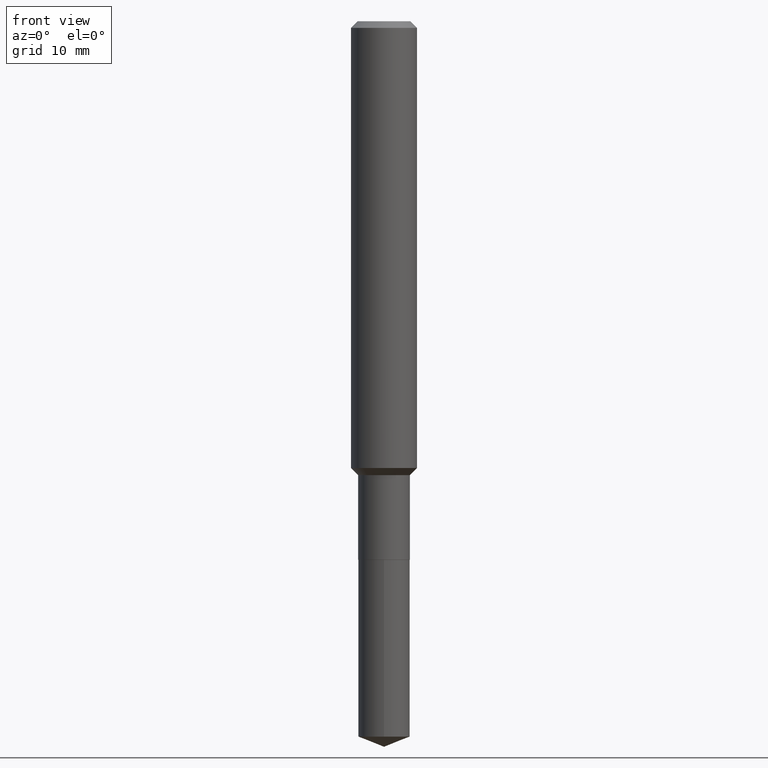
[diagram: clean part render]
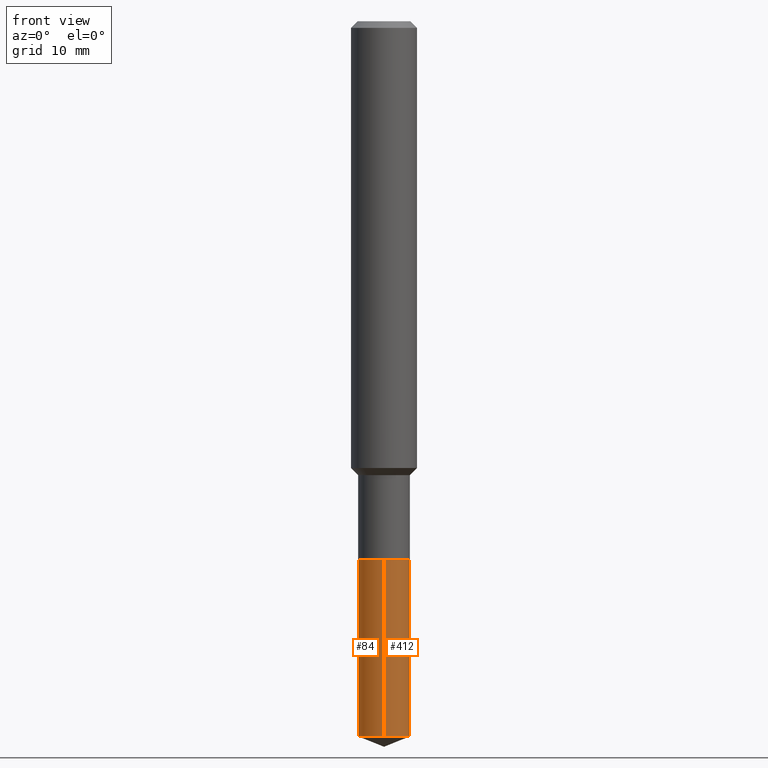
[diagram: same view with one multi-face feature highlighted, each face labeled with its STEP entity id]
A machine part, front view. The highlighted faces form ONE feature: a constant-radius fillet chain: 2 tangent blend faces with common blend radius 2.3495 mm. The faces share edges in the B-rep.
Their STEP definitions:
[1] entity #412 (Cylinder):
#3 = VERTEX_POINT ( 'NONE', #203 ) ;
#14 = CARTESIAN_POINT ( 'NONE',  ( -6.459240476859167788E-16, -0.09250000000000889455, -2.561963281005616988 ) ) ;
#22 = CARTESIAN_POINT ( 'NONE',  ( 4.717553874011746679E-29, -6.735416650762311704E-15, -1.929099999999999815 ) ) ;
#43 = AXIS2_PLACEMENT_3D ( 'NONE', #22, #317, #215 ) ;
#80 = ORIENTED_EDGE ( 'NONE', *, *, #465, .T. ) ;
#96 = CARTESIAN_POINT ( 'NONE',  ( -6.459240476859323588E-16, -0.09250000000000672962, -1.929099999999999593 ) ) ;
#111 = LINE ( 'NONE', #216, #400 ) ;
#113 = ORIENTED_EDGE ( 'NONE', *, *, #123, .F. ) ;
#123 = EDGE_CURVE ( 'NONE', #3, #325, #318, .T. ) ;
#135 = LINE ( 'NONE', #96, #329 ) ;
#146 = DIRECTION ( 'NONE',  ( -2.445600324468022531E-29, 3.491292997176496654E-15, 1.000000000000000000 ) ) ;
#151 = CIRCLE ( 'NONE', #253, 0.09249999999999999889 ) ;
#160 = VERTEX_POINT ( 'NONE', #14 ) ;
#165 = FACE_OUTER_BOUND ( 'NONE', #468, .T. ) ;
#185 = VERTEX_POINT ( 'NONE', #287 ) ;
#197 = CARTESIAN_POINT ( 'NONE',  ( 6.572520305781553785E-16, 0.09249999999999328204, -1.929100000000000259 ) ) ;
#203 = CARTESIAN_POINT ( 'NONE',  ( -6.459240476859323588E-16, -0.09250000000000672962, -1.929099999999999593 ) ) ;
#215 = DIRECTION ( 'NONE',  ( -6.982962677686265922E-15, -1.000000000000000000, 2.953349182339743999E-15 ) ) ;
#216 = CARTESIAN_POINT ( 'NONE',  ( 6.572520305781397985E-16, 0.09249999999999328204, -1.929100000000000259 ) ) ;
#224 = ORIENTED_EDGE ( 'NONE', *, *, #486, .F. ) ;
#243 = EDGE_CURVE ( 'NONE', #185, #325, #111, .T. ) ;
#253 = AXIS2_PLACEMENT_3D ( 'NONE', #348, #282, #285 ) ;
#275 = AXIS2_PLACEMENT_3D ( 'NONE', #330, #488, #302 ) ;
#282 = DIRECTION ( 'NONE',  ( -2.445600324468022812E-29, 3.491292997176496654E-15, 1.000000000000000000 ) ) ;
#285 = DIRECTION ( 'NONE',  ( -6.982962677686265922E-15, -1.000000000000000000, 5.906698364679487997E-15 ) ) ;
#287 = CARTESIAN_POINT ( 'NONE',  ( 6.572520305781548854E-16, 0.09249999999999103384, -2.561963281005617876 ) ) ;
#302 = DIRECTION ( 'NONE',  ( -6.982962677686265922E-15, -1.000000000000000000, 2.953349182339743999E-15 ) ) ;
#317 = DIRECTION ( 'NONE',  ( -2.445600324468022812E-29, 3.491292997176496654E-15, 1.000000000000000000 ) ) ;
#318 = CIRCLE ( 'NONE', #43, 0.09249999999999999889 ) ;
#325 = VERTEX_POINT ( 'NONE', #197 ) ;
#329 = VECTOR ( 'NONE', #146, 39.37007874015748143 ) ;
#330 = CARTESIAN_POINT ( 'NONE',  ( 4.717553874011746679E-29, -6.735416650762311704E-15, -1.929099999999999815 ) ) ;
#348 = CARTESIAN_POINT ( 'NONE',  ( 6.265284519382982955E-29, -8.944927791907365076E-15, -2.561963281005617432 ) ) ;
#400 = VECTOR ( 'NONE', #478, 39.37007874015748143 ) ;
#412 = ADVANCED_FACE ( 'NONE', ( #165 ), #456, .T. ) ;
#456 = CYLINDRICAL_SURFACE ( 'NONE', #275, 0.09249999999999999889 ) ;
#465 = EDGE_CURVE ( 'NONE', #160, #185, #151, .T. ) ;
#468 = EDGE_LOOP ( 'NONE', ( #80, #482, #113, #224 ) ) ;
#478 = DIRECTION ( 'NONE',  ( -2.445600324468022531E-29, 3.491292997176496654E-15, 1.000000000000000000 ) ) ;
#482 = ORIENTED_EDGE ( 'NONE', *, *, #243, .T. ) ;
#486 = EDGE_CURVE ( 'NONE', #160, #3, #135, .T. ) ;
#488 = DIRECTION ( 'NONE',  ( -2.445600324468022812E-29, 3.491292997176496654E-15, 1.000000000000000000 ) ) ;
[2] entity #84 (Cylinder):
#3 = VERTEX_POINT ( 'NONE', #203 ) ;
#14 = CARTESIAN_POINT ( 'NONE',  ( -6.459240476859167788E-16, -0.09250000000000889455, -2.561963281005616988 ) ) ;
#35 = CARTESIAN_POINT ( 'NONE',  ( 4.717553874011746679E-29, -6.735416650762311704E-15, -1.929099999999999815 ) ) ;
#60 = AXIS2_PLACEMENT_3D ( 'NONE', #35, #435, #66 ) ;
#66 = DIRECTION ( 'NONE',  ( -6.982962677686265922E-15, -1.000000000000000000, 2.953349182339743999E-15 ) ) ;
#84 = ADVANCED_FACE ( 'NONE', ( #358 ), #214, .T. ) ;
#96 = CARTESIAN_POINT ( 'NONE',  ( -6.459240476859323588E-16, -0.09250000000000672962, -1.929099999999999593 ) ) ;
#111 = LINE ( 'NONE', #216, #400 ) ;
#135 = LINE ( 'NONE', #96, #329 ) ;
#146 = DIRECTION ( 'NONE',  ( -2.445600324468022531E-29, 3.491292997176496654E-15, 1.000000000000000000 ) ) ;
#160 = VERTEX_POINT ( 'NONE', #14 ) ;
#161 = ORIENTED_EDGE ( 'NONE', *, *, #243, .F. ) ;
#185 = VERTEX_POINT ( 'NONE', #287 ) ;
#197 = CARTESIAN_POINT ( 'NONE',  ( 6.572520305781553785E-16, 0.09249999999999328204, -1.929100000000000259 ) ) ;
#202 = CIRCLE ( 'NONE', #291, 0.09249999999999999889 ) ;
#203 = CARTESIAN_POINT ( 'NONE',  ( -6.459240476859323588E-16, -0.09250000000000672962, -1.929099999999999593 ) ) ;
#214 = CYLINDRICAL_SURFACE ( 'NONE', #245, 0.09249999999999999889 ) ;
#216 = CARTESIAN_POINT ( 'NONE',  ( 6.572520305781397985E-16, 0.09249999999999328204, -1.929100000000000259 ) ) ;
#236 = DIRECTION ( 'NONE',  ( -2.445600324468022812E-29, 3.491292997176496654E-15, 1.000000000000000000 ) ) ;
#237 = EDGE_CURVE ( 'NONE', #325, #3, #338, .T. ) ;
#243 = EDGE_CURVE ( 'NONE', #185, #325, #111, .T. ) ;
#245 = AXIS2_PLACEMENT_3D ( 'NONE', #353, #472, #322 ) ;
#257 = ORIENTED_EDGE ( 'NONE', *, *, #486, .T. ) ;
#287 = CARTESIAN_POINT ( 'NONE',  ( 6.572520305781548854E-16, 0.09249999999999103384, -2.561963281005617876 ) ) ;
#291 = AXIS2_PLACEMENT_3D ( 'NONE', #336, #236, #373 ) ;
#322 = DIRECTION ( 'NONE',  ( -6.982962677686265922E-15, -1.000000000000000000, 2.953349182339743999E-15 ) ) ;
#325 = VERTEX_POINT ( 'NONE', #197 ) ;
#326 = ORIENTED_EDGE ( 'NONE', *, *, #339, .T. ) ;
#329 = VECTOR ( 'NONE', #146, 39.37007874015748143 ) ;
#336 = CARTESIAN_POINT ( 'NONE',  ( 6.265284519382982955E-29, -8.944927791907365076E-15, -2.561963281005617432 ) ) ;
#338 = CIRCLE ( 'NONE', #60, 0.09249999999999999889 ) ;
#339 = EDGE_CURVE ( 'NONE', #185, #160, #202, .T. ) ;
#353 = CARTESIAN_POINT ( 'NONE',  ( 4.717553874011746679E-29, -6.735416650762311704E-15, -1.929099999999999815 ) ) ;
#358 = FACE_OUTER_BOUND ( 'NONE', #436, .T. ) ;
#373 = DIRECTION ( 'NONE',  ( -6.982962677686265922E-15, -1.000000000000000000, 5.906698364679487997E-15 ) ) ;
#400 = VECTOR ( 'NONE', #478, 39.37007874015748143 ) ;
#435 = DIRECTION ( 'NONE',  ( -2.445600324468022812E-29, 3.491292997176496654E-15, 1.000000000000000000 ) ) ;
#436 = EDGE_LOOP ( 'NONE', ( #161, #326, #257, #480 ) ) ;
#472 = DIRECTION ( 'NONE',  ( -2.445600324468022812E-29, 3.491292997176496654E-15, 1.000000000000000000 ) ) ;
#478 = DIRECTION ( 'NONE',  ( -2.445600324468022531E-29, 3.491292997176496654E-15, 1.000000000000000000 ) ) ;
#480 = ORIENTED_EDGE ( 'NONE', *, *, #237, .F. ) ;
#486 = EDGE_CURVE ( 'NONE', #160, #3, #135, .T. ) ;